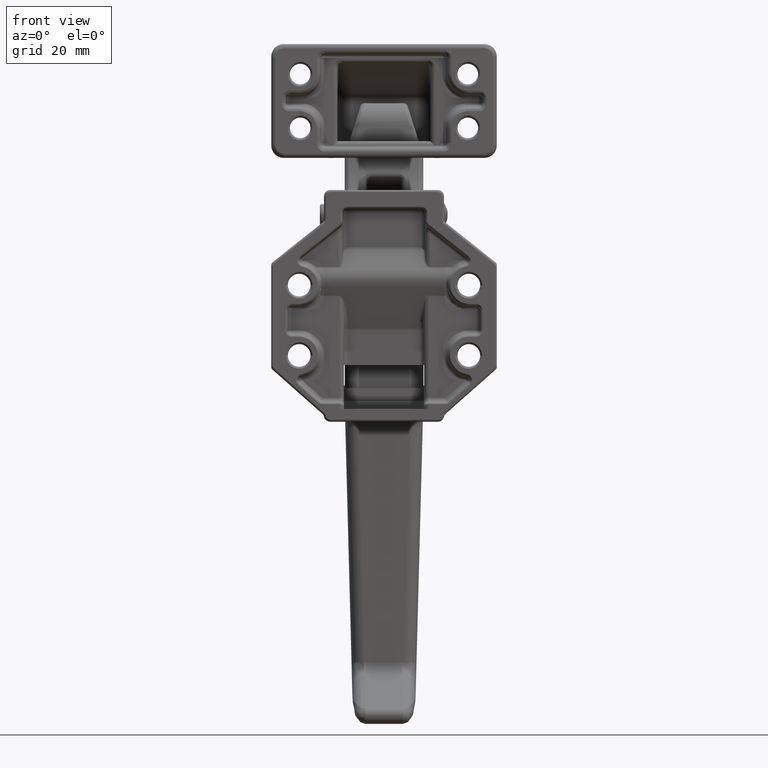
[diagram: clean part render]
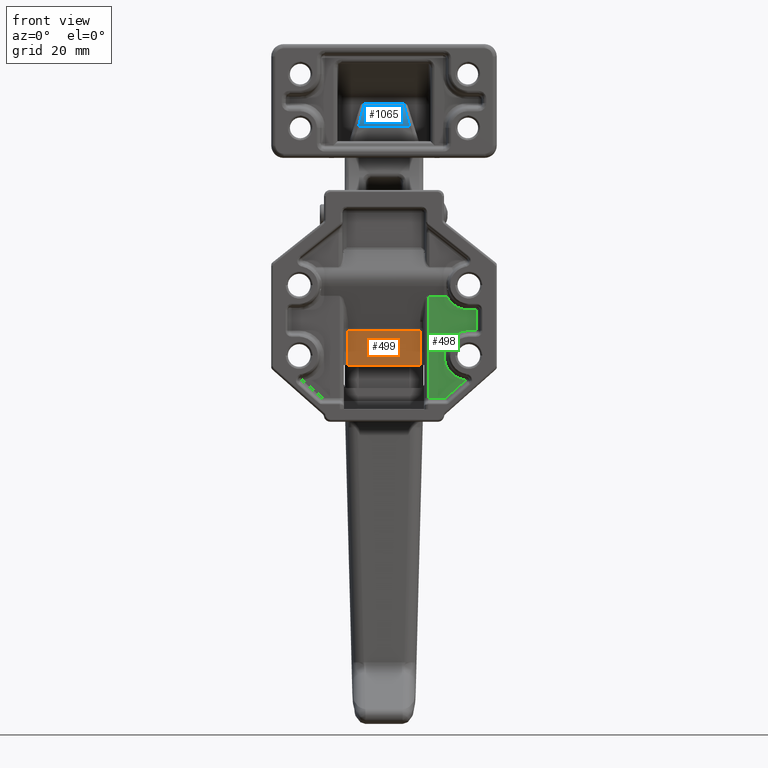
[diagram: same view with three faces highlighted in distinct colors, each labeled with its STEP entity id]
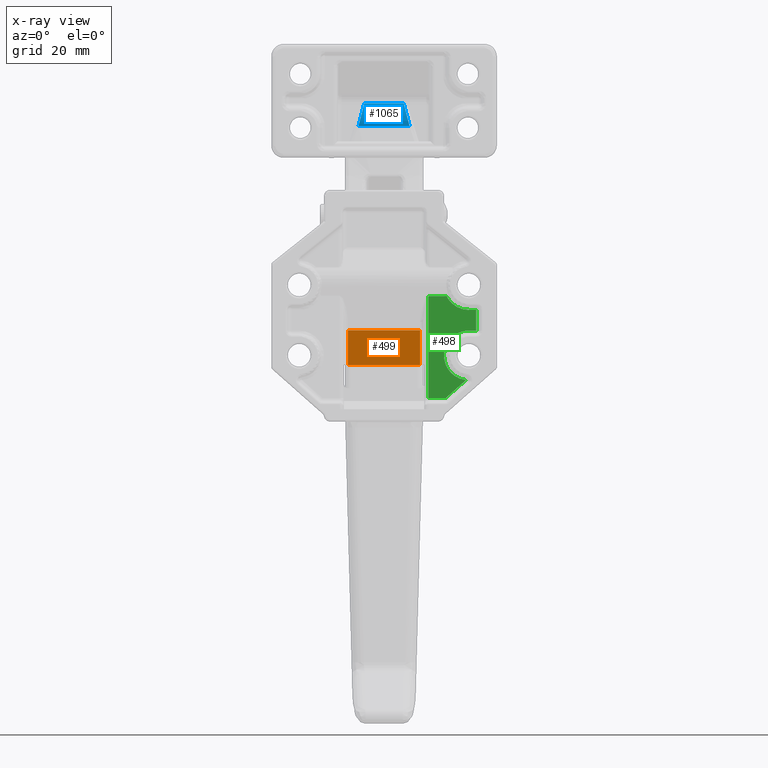
[diagram: x-ray of the same camera — body ghosted, the three highlighted faces saturated]
A machine part, front view with three faces highlighted in distinct colors.
The next image is the same camera in x-ray (body ghosted, the three faces saturated) — at least one of them is partly hidden behind the body in this view.
Their STEP definitions:

[orange] entity #499 — the highlighted planar face has unit normal (0, 1, -0.0015).
#499=ADVANCED_FACE('',(#3446),#3445,.F.);
#3445=PLANE('',#13551);
#3446=FACE_OUTER_BOUND('',#13552,.T.);
#13548=CARTESIAN_POINT('',(-1.04400000000E+001,5.50000000000E+000,-1.41412867862E+001));
#13549=DIRECTION('',(0.00000000000E+000,1.00000000000E+000,0.00000000000E+000));
#13550=DIRECTION('',(0.00000000000E+000,0.00000000000E+000,1.00000000000E+000));
#13551=AXIS2_PLACEMENT_3D('',#13548,#13549,#13550);
#13552=EDGE_LOOP('',(#24957,#24958,#24959,#24960));
#24957=ORIENTED_EDGE('',*,*,#28616,.F.);
#24958=ORIENTED_EDGE('',*,*,#28493,.T.);
#24959=ORIENTED_EDGE('',*,*,#28448,.T.);
#24960=ORIENTED_EDGE('',*,*,#28443,.T.);
#28443=EDGE_CURVE('',#33378,#32465,#33379,.T.);
#28448=EDGE_CURVE('',#33412,#33378,#33413,.T.);
#28493=EDGE_CURVE('',#33694,#33412,#33707,.T.);
#28616=EDGE_CURVE('',#33694,#32465,#34499,.T.);
#32465=VERTEX_POINT('',#45476);
#33378=VERTEX_POINT('',#46165);
#33379=LINE('',#46166,#46167);
#33412=VERTEX_POINT('',#46187);
#33413=LINE('',#46188,#46189);
#33694=VERTEX_POINT('',#46363);
#33707=LINE('',#46371,#46372);
#34499=LINE('',#47200,#47201);
#45476=CARTESIAN_POINT('',(8.70000000000E+000,5.50000000000E+000,-4.88714421593E+000));
#46165=CARTESIAN_POINT('',(8.70000000000E+000,5.50000000000E+000,-1.33000010980E+001));
#46166=CARTESIAN_POINT('',(8.70000000000E+000,5.50000000000E+000,-1.33000010980E+001));
#46167=VECTOR('',#46168,8.41285688207E+000);
#46168=DIRECTION('',(0.00000000000E+000,-2.11147873344E-016,1.00000000000E+000));
#46187=CARTESIAN_POINT('',(-8.70000000000E+000,5.50000000000E+000,-1.33000010980E+001));
#46188=CARTESIAN_POINT('',(-8.70000000000E+000,5.50000000000E+000,-1.33000010980E+001));
#46189=VECTOR('',#46190,1.74000000000E+001);
#46190=DIRECTION('',(1.00000000000E+000,-1.02089473529E-016,-2.04178947058E-016));
#46363=CARTESIAN_POINT('',(-8.70000000000E+000,5.50000000000E+000,-4.88714421593E+000));
#46371=CARTESIAN_POINT('',(-8.70000000000E+000,5.50000000000E+000,-4.88714421593E+000));
#46372=VECTOR('',#46373,8.41285688207E+000);
#46373=DIRECTION('',(0.00000000000E+000,4.22295746689E-016,-1.00000000000E+000));
#47200=CARTESIAN_POINT('',(-8.70000000000E+000,5.50000000000E+000,-4.88714421593E+000));
#47201=VECTOR('',#47202,1.74000000000E+001);
#47202=DIRECTION('',(1.00000000000E+000,0.00000000000E+000,1.02089473529E-016));

[blue] entity #1065 — the highlighted cylindrical surface (edge-blend (fillet) strip) has radius 5.5 mm, axis along (1, 0, 0).
#1065=ADVANCED_FACE('',(#9128),#9127,.T.);
#9127=CYLINDRICAL_SURFACE('',#22713,5.50000000000E+000);
#9128=FACE_OUTER_BOUND('',#22714,.T.);
#22710=CARTESIAN_POINT('',(0.00000000000E+000,-1.11000000000E+001,2.15000000000E+001));
#22711=DIRECTION('',(1.00000000000E+000,7.88510670899E-017,-0.00000000000E+000));
#22712=DIRECTION('',(-7.88510670899E-017,1.00000000000E+000,-0.00000000000E+000));
#22713=AXIS2_PLACEMENT_3D('',#22710,#22711,#22712);
#22714=EDGE_LOOP('',(#27656,#27657,#27658,#27659));
#27656=ORIENTED_EDGE('',*,*,#29872,.T.);
#27657=ORIENTED_EDGE('',*,*,#29873,.T.);
#27658=ORIENTED_EDGE('',*,*,#29874,.T.);
#27659=ORIENTED_EDGE('',*,*,#29826,.F.);
#29826=EDGE_CURVE('',#42435,#42428,#42442,.T.);
#29872=EDGE_CURVE('',#42435,#42744,#42745,.T.);
#29873=EDGE_CURVE('',#42744,#42751,#42752,.T.);
#29874=EDGE_CURVE('',#42751,#42428,#42758,.T.);
#42428=VERTEX_POINT('',#53511);
#42435=VERTEX_POINT('',#53516);
#42442=LINE('',#53521,#53522);
#42744=VERTEX_POINT('',#53759);
#42745=(BOUNDED_CURVE() B_SPLINE_CURVE(3,(#53760,#53761,#53762,#53763,#53764,#53765),.UNSPECIFIED.,.F.,.F.) B_SPLINE_CURVE_WITH_KNOTS((4,1,1,4),(0.00000000000E+000,3.27063505901E-001,6.56236458220E-001,1.00000000000E+000),.UNSPECIFIED.) CURVE() GEOMETRIC_REPRESENTATION_ITEM() RATIONAL_B_SPLINE_CURVE((1.00000000000E+000,1.00000000000E+000,1.00000000000E+000,1.00000000000E+000,1.00000000000E+000,1.00000000000E+000)) REPRESENTATION_ITEM('') );
#42751=VERTEX_POINT('',#53766);
#42752=LINE('',#53767,#53768);
#42758=(BOUNDED_CURVE() B_SPLINE_CURVE(3,(#53770,#53771,#53772,#53773,#53774,#53775),.UNSPECIFIED.,.F.,.F.) B_SPLINE_CURVE_WITH_KNOTS((4,1,1,4),(0.00000000000E+000,3.38642339386E-001,6.78521013168E-001,1.00000000000E+000),.UNSPECIFIED.) CURVE() GEOMETRIC_REPRESENTATION_ITEM() RATIONAL_B_SPLINE_CURVE((1.00000000000E+000,1.00000000000E+000,1.00000000000E+000,1.00000000000E+000,1.00000000000E+000,1.00000000000E+000)) REPRESENTATION_ITEM('') );
#53511=CARTESIAN_POINT('',(4.77737686648E+000,-1.17790476777E+001,2.69579203229E+001));
#53516=CARTESIAN_POINT('',(-4.77737686648E+000,-1.17790476777E+001,2.69579203229E+001));
#53521=CARTESIAN_POINT('',(-4.77737686648E+000,-1.17790476777E+001,2.69579203229E+001));
#53522=VECTOR('',#53523,9.55475373296E+000);
#53523=DIRECTION('',(1.00000000000E+000,7.43653636314E-016,0.00000000000E+000));
#53759=CARTESIAN_POINT('',(-6.17589679930E+000,-1.65999816994E+001,2.15138472505E+001));
#53760=CARTESIAN_POINT('',(-4.77737686648E+000,-1.17790476777E+001,2.69579203229E+001));
#53761=CARTESIAN_POINT('',(-4.80502797232E+000,-1.26492981755E+001,2.68507301502E+001));
#53762=CARTESIAN_POINT('',(-4.97131512958E+000,-1.43400348844E+001,2.62071252969E+001));
#53763=CARTESIAN_POINT('',(-5.49767549470E+000,-1.61632710156E+001,2.41578839475E+001));
#53764=CARTESIAN_POINT('',(-5.95317006547E+000,-1.65980993112E+001,2.24081758104E+001));
#53765=CARTESIAN_POINT('',(-6.17589679930E+000,-1.65999816994E+001,2.15138472505E+001));
#53766=CARTESIAN_POINT('',(6.17589680268E+000,-1.65999816995E+001,2.15138472405E+001));
#53767=CARTESIAN_POINT('',(-6.17589679930E+000,-1.65999816994E+001,2.15138472505E+001));
#53768=VECTOR('',#53769,1.23517936020E+001);
#53769=DIRECTION('',(1.00000000000E+000,-2.23860367596E-012,-8.12878902046E-010));
#53770=CARTESIAN_POINT('',(6.17589680268E+000,-1.65999816995E+001,2.15138472405E+001));
#53771=CARTESIAN_POINT('',(5.95655661142E+000,-1.65978567055E+001,2.23947662936E+001));
#53772=CARTESIAN_POINT('',(5.49768899344E+000,-1.61676761175E+001,2.41578312630E+001));
#53773=CARTESIAN_POINT('',(4.96981317223E+000,-1.43384241859E+001,2.62126072736E+001));
#53774=CARTESIAN_POINT('',(4.80459085049E+000,-1.26342073887E+001,2.68520392755E+001));
#53775=CARTESIAN_POINT('',(4.77737686648E+000,-1.17790476777E+001,2.69579203229E+001));

[green] entity #498 — the highlighted planar face has unit normal (0, -1, 0.0015).
#498=ADVANCED_FACE('',(#3436),#3435,.T.);
#3435=PLANE('',#13546);
#3436=FACE_OUTER_BOUND('',#13547,.T.);
#13543=CARTESIAN_POINT('',(9.54000013000E+000,3.00000000000E+000,5.80082134154E+000));
#13544=DIRECTION('',(0.00000000000E+000,-1.00000000000E+000,0.00000000000E+000));
#13545=DIRECTION('',(0.00000000000E+000,0.00000000000E+000,-1.00000000000E+000));
#13546=AXIS2_PLACEMENT_3D('',#13543,#13544,#13545);
#13547=EDGE_LOOP('',(#24948,#24949,#24950,#24951,#24952,#24953,#24954,#24955,#24956));
#24948=ORIENTED_EDGE('',*,*,#28587,.T.);
#24949=ORIENTED_EDGE('',*,*,#28584,.T.);
#24950=ORIENTED_EDGE('',*,*,#28583,.T.);
#24951=ORIENTED_EDGE('',*,*,#28615,.T.);
#24952=ORIENTED_EDGE('',*,*,#28441,.F.);
#24953=ORIENTED_EDGE('',*,*,#28599,.T.);
#24954=ORIENTED_EDGE('',*,*,#28595,.T.);
#24955=ORIENTED_EDGE('',*,*,#28592,.T.);
#24956=ORIENTED_EDGE('',*,*,#28590,.T.);
#28441=EDGE_CURVE('',#33353,#32484,#33366,.T.);
#28583=EDGE_CURVE('',#34279,#34286,#34293,.T.);
#28584=EDGE_CURVE('',#34299,#34279,#34300,.T.);
#28587=EDGE_CURVE('',#34318,#34299,#34319,.T.);
#28590=EDGE_CURVE('',#34337,#34318,#34338,.T.);
#28592=EDGE_CURVE('',#34350,#34337,#34351,.T.);
#28595=EDGE_CURVE('',#34369,#34350,#34370,.T.);
#28599=EDGE_CURVE('',#33353,#34369,#34394,.T.);
#28615=EDGE_CURVE('',#34286,#32484,#34493,.T.);
#32484=VERTEX_POINT('',#45489);
#33353=VERTEX_POINT('',#46150);
#33366=LINE('',#46159,#46160);
#34279=VERTEX_POINT('',#46940);
#34286=VERTEX_POINT('',#46945);
#34293=(BOUNDED_CURVE() B_SPLINE_CURVE(3,(#46960,#46961,#46962,#46963,#46964,#46965,#46966,#46967,#46968,#46969,#46970,#46971,#46972,#46973,#46974,#46975,#46976,#46977,#46978,#46979,#46980,#46981,#46982),.UNSPECIFIED.,.F.,.F.) B_SPLINE_CURVE_WITH_KNOTS((4,1,1,1,2,2,1,2,2,1,1,1,2,2,4),(0.00000000000E+000,1.25000000000E-001,1.87500000000E-001,2.18750000000E-001,2.34375000000E-001,2.50000000000E-001,3.75000000000E-001,4.37500000000E-001,5.00000000000E-001,6.25000000000E-001,6.87500000000E-001,7.18750000000E-001,7.34375000000E-001,7.50000000000E-001,1.00000000000E+000),.UNSPECIFIED.) CURVE() GEOMETRIC_REPRESENTATION_ITEM() RATIONAL_B_SPLINE_CURVE((1.00000000000E+000,1.00000000000E+000,1.00000000000E+000,1.00000000000E+000,1.00000000000E+000,1.00000000000E+000,1.00000000000E+000,1.00000000000E+000,1.00000000000E+000,1.00000000000E+000,1.00000000000E+000,1.00000000000E+000,1.00000000000E+000,1.00000000000E+000,1.00000000000E+000,1.00000000000E+000,1.00000000000E+000,1.00000000000E+000,1.00000000000E+000,1.00000000000E+000,1.00000000000E+000,1.00000000000E+000,1.00000000000E+000)) REPRESENTATION_ITEM('') );
#34299=VERTEX_POINT('',#46983);
#34300=LINE('',#46984,#46985);
#34318=VERTEX_POINT('',#46995);
#34319=LINE('',#46996,#46997);
#34337=VERTEX_POINT('',#47007);
#34338=LINE('',#47008,#47009);
#34350=VERTEX_POINT('',#47015);
#34351=(BOUNDED_CURVE() B_SPLINE_CURVE(3,(#47016,#47017,#47018,#47019,#47020,#47021,#47022,#47023,#47024,#47025,#47026,#47027,#47028,#47029,#47030,#47031,#47032,#47033,#47034,#47035,#47036,#47037,#47038,#47039,#47040,#47041,#47042,#47043,#47044,#47045,#47046,#47047,#47048,#47049,#47050,#47051,#47052,#47053,#47054,#47055,#47056,#47057,#47058,#47059,#47060,#47061,#47062,#47063,#47064,#47065,#47066,#47067,#47068,#47069,#47070,#47071,#47072,#47073,#47074,#47075,#47076,#47077,#47078,#47079,#47080,#47081,#47082,#47083,#47084),.UNSPECIFIED.,.F.,.F.) B_SPLINE_CURVE_WITH_KNOTS((4,1,1,1,2,2,2,1,1,2,2,1,1,2,2,1,1,1,2,2,1,1,2,2,1,1,2,2,1,2,2,2,1,2,2,1,1,2,2,1,1,1,2,2,4),(0.00000000000E+000,6.25000000000E-002,9.37500000000E-002,1.09375000000E-001,1.17187500000E-001,1.25000000000E-001,1.87500000000E-001,2.18750000000E-001,2.34375000000E-001,2.42187500000E-001,2.50000000000E-001,2.81250000000E-001,2.96875000000E-001,3.04687500000E-001,3.12500000000E-001,3.43750000000E-001,3.59375000000E-001,3.67187500000E-001,3.71093750000E-001,3.75000000000E-001,4.37500000000E-001,4.68750000000E-001,4.84375000000E-001,5.00000000000E-001,5.31250000000E-001,5.46875000000E-001,5.54687500000E-001,5.62500000000E-001,5.93750000000E-001,6.09375000000E-001,6.25000000000E-001,6.87500000000E-001,7.18750000000E-001,7.34375000000E-001,7.50000000000E-001,7.81250000000E-001,7.96875000000E-001,8.04687500000E-001,8.12500000000E-001,8.43750000000E-001,8.59375000000E-001,8.67187500000E-001,8.71093750000E-001,8.75000000000E-001,1.00000000000E+000),.UNSPECIFIED.) CURVE() GEOMETRIC_REPRESENTATION_ITEM() RATIONAL_B_SPLINE_CURVE((1.00000000000E+000,1.00000000000E+000,1.00000000000E+000,1.00000000000E+000,1.00000000000E+000,1.00000000000E+000,1.00000000000E+000,1.00000000000E+000,1.00000000000E+000,1.00000000000E+000,1.00000000000E+000,1.00000000000E+000,1.00000000000E+000,1.00000000000E+000,1.00000000000E+000,1.00000000000E+000,1.00000000000E+000,1.00000000000E+000,1.00000000000E+000,1.00000000000E+000,1.00000000000E+000,1.00000000000E+000,1.00000000000E+000,1.00000000000E+000,1.00000000000E+000,1.00000000000E+000,1.00000000000E+000,1.00000000000E+000,1.00000000000E+000,1.00000000000E+000,1.00000000000E+000,1.00000000000E+000,1.00000000000E+000,1.00000000000E+000,1.00000000000E+000,1.00000000000E+000,1.00000000000E+000,1.00000000000E+000,1.00000000000E+000,1.00000000000E+000,1.00000000000E+000,1.00000000000E+000,1.00000000000E+000,1.00000000000E+000,1.00000000000E+000,1.00000000000E+000,1.00000000000E+000,1.00000000000E+000,1.00000000000E+000,1.00000000000E+000,1.00000000000E+000,1.00000000000E+000,1.00000000000E+000,1.00000000000E+000,1.00000000000E+000,1.00000000000E+000,1.00000000000E+000,1.00000000000E+000,1.00000000000E+000,1.00000000000E+000,1.00000000000E+000,1.00000000000E+000,1.00000000000E+000,1.00000000000E+000,1.00000000000E+000,1.00000000000E+000,1.00000000000E+000,1.00000000000E+000,1.00000000000E+000)) REPRESENTATION_ITEM('') );
#34369=VERTEX_POINT('',#47117);
#34370=LINE('',#47118,#47119);
#34394=LINE('',#47133,#47134);
#34493=LINE('',#47197,#47198);
#45489=CARTESIAN_POINT('',(1.07000000000E+001,3.00000000000E+000,3.33709792165E+000));
#46150=CARTESIAN_POINT('',(1.07000000000E+001,3.00000000000E+000,-2.13000010980E+001));
#46159=CARTESIAN_POINT('',(1.07000000000E+001,3.00000000000E+000,-2.13000010980E+001));
#46160=VECTOR('',#46161,2.46370990197E+001);
#46161=DIRECTION('',(0.00000000000E+000,1.80252232414E-016,1.00000000000E+000));
#46940=CARTESIAN_POINT('',(2.05000000000E+001,3.00000000000E+000,2.60208521397E-014));
#46945=CARTESIAN_POINT('',(1.51233875206E+001,2.99998358855E+000,3.33711021068E+000));
#46960=CARTESIAN_POINT('',(2.05000000000E+001,3.00000000000E+000,2.60208521397E-014));
#46961=CARTESIAN_POINT('',(2.02252910718E+001,3.00000000000E+000,4.96719145113E-004));
#46962=CARTESIAN_POINT('',(1.98177008715E+001,3.00000000000E+000,2.84623432496E-002));
#46963=CARTESIAN_POINT('',(1.93500070575E+001,3.00000000000E+000,1.08724859132E-001));
#46964=CARTESIAN_POINT('',(1.91181171720E+001,3.00000000000E+000,1.60765105680E-001));
#46965=CARTESIAN_POINT('',(1.90191551542E+001,3.00000000000E+000,1.85619994616E-001));
#46966=CARTESIAN_POINT('',(1.89532736673E+001,3.00000000000E+000,2.02757015269E-001));
#46967=CARTESIAN_POINT('',(1.89216689618E+001,3.00000000000E+000,2.11250451535E-001));
#46968=CARTESIAN_POINT('',(1.86144360134E+001,3.00000000000E+000,2.96698489411E-001));
#46969=CARTESIAN_POINT('',(1.82158471776E+001,3.00000000000E+000,4.38722207616E-001));
#46970=CARTESIAN_POINT('',(1.78338409850E+001,3.00000000000E+000,6.22885427374E-001));
#46971=CARTESIAN_POINT('',(1.75828552217E+001,3.00000000000E+000,7.55025240892E-001));
#46972=CARTESIAN_POINT('',(1.74580439500E+001,3.00000000000E+000,8.26496250596E-001));
#46973=CARTESIAN_POINT('',(1.70961031185E+001,3.00000000000E+000,1.05064216359E+000));
#46974=CARTESIAN_POINT('',(1.67527525417E+001,3.00000000000E+000,1.29860807624E+000));
#46975=CARTESIAN_POINT('',(1.63847098145E+001,3.00000000000E+000,1.62958664038E+000));
#46976=CARTESIAN_POINT('',(1.62088216873E+001,3.00000000000E+000,1.80549717230E+000));
#46977=CARTESIAN_POINT('',(1.61351838978E+001,3.00000000000E+000,1.88312052523E+000));
#46978=CARTESIAN_POINT('',(1.60864793351E+001,3.00000000000E+000,1.93536567718E+000));
#46979=CARTESIAN_POINT('',(1.60611349971E+001,3.00000000000E+000,1.96305338624E+000));
#46980=CARTESIAN_POINT('',(1.56738872495E+001,3.00000000000E+000,2.39318429012E+000));
#46981=CARTESIAN_POINT('',(1.53688977829E+001,3.00000000000E+000,2.84276925756E+000));
#46982=CARTESIAN_POINT('',(1.51233875206E+001,2.99998358855E+000,3.33711021068E+000));
#46983=CARTESIAN_POINT('',(2.22999987000E+001,3.00000000000E+000,7.20049020408E-011));
#46984=CARTESIAN_POINT('',(2.22999987000E+001,3.00000000000E+000,7.20049020408E-011));
#46985=VECTOR('',#46986,1.79999870000E+000);
#46986=DIRECTION('',(-1.00000000000E+000,-4.93432811757E-016,-3.99882962075E-011));
#46995=CARTESIAN_POINT('',(2.22999987000E+001,3.00000000000E+000,-5.00000000000E+000));
#46996=CARTESIAN_POINT('',(2.22999987000E+001,3.00000000000E+000,-5.00000000000E+000));
#46997=VECTOR('',#46998,5.00000000007E+000);
#46998=DIRECTION('',(-7.10542735750E-016,-5.32907051812E-016,1.00000000000E+000));
#47007=CARTESIAN_POINT('',(2.05000000000E+001,3.00000000000E+000,-5.00000000000E+000));
#47008=CARTESIAN_POINT('',(2.05000000000E+001,3.00000000000E+000,-5.00000000000E+000));
#47009=VECTOR('',#47010,1.79999870000E+000);
#47010=DIRECTION('',(1.00000000000E+000,1.97373124703E-015,9.86865623514E-016));
#47015=CARTESIAN_POINT('',(1.98018044379E+001,2.99999999996E+000,-1.69592526350E+001));
#47016=CARTESIAN_POINT('',(1.98018044379E+001,2.99999999996E+000,-1.69592526350E+001));
#47017=CARTESIAN_POINT('',(1.94262600327E+001,3.00000000000E+000,-1.69147370451E+001));
#47018=CARTESIAN_POINT('',(1.88791654018E+001,3.00000000000E+000,-1.67983417309E+001));
#47019=CARTESIAN_POINT('',(1.82692767727E+001,3.00000000000E+000,-1.65757085149E+001));
#47020=CARTESIAN_POINT('',(1.79714295683E+001,3.00000000000E+000,-1.64426822362E+001));
#47021=CARTESIAN_POINT('',(1.78453015756E+001,3.00000000000E+000,-1.63810189017E+001));
#47022=CARTESIAN_POINT('',(1.77615542048E+001,3.00000000000E+000,-1.63388762181E+001));
#47023=CARTESIAN_POINT('',(1.77215157587E+001,3.00000000000E+000,-1.63181747560E+001));
#47024=CARTESIAN_POINT('',(1.73326978649E+001,3.00000000000E+000,-1.61112475457E+001));
#47025=CARTESIAN_POINT('',(1.70057699640E+001,3.00000000000E+000,-1.58933080183E+001));
#47026=CARTESIAN_POINT('',(1.65469819717E+001,3.00000000000E+000,-1.55183118812E+001));
#47027=CARTESIAN_POINT('',(1.63273150294E+001,3.00000000000E+000,-1.53196889185E+001));
#47028=CARTESIAN_POINT('',(1.60880592742E+001,3.00000000000E+000,-1.50684935639E+001));
#47029=CARTESIAN_POINT('',(1.59891687386E+001,3.00000000000E+000,-1.49566665767E+001));
#47030=CARTESIAN_POINT('',(1.59240523027E+001,3.00000000000E+000,-1.48811881773E+001));
#47031=CARTESIAN_POINT('',(1.58911633299E+001,3.00000000000E+000,-1.48420889872E+001));
#47032=CARTESIAN_POINT('',(1.57361054230E+001,3.00000000000E+000,-1.46532398820E+001));
#47033=CARTESIAN_POINT('',(1.55614676652E+001,3.00000000000E+000,-1.44176913720E+001));
#47034=CARTESIAN_POINT('',(1.53777291426E+001,3.00000000000E+000,-1.41272580055E+001));
#47035=CARTESIAN_POINT('',(1.53032709605E+001,3.00000000000E+000,-1.39994379688E+001));
#47036=CARTESIAN_POINT('',(1.52545848165E+001,3.00000000000E+000,-1.39134804790E+001));
#47037=CARTESIAN_POINT('',(1.52297128516E+001,3.00000000000E+000,-1.38682506562E+001));
#47038=CARTESIAN_POINT('',(1.51177867881E+001,3.00000000000E+000,-1.36590313317E+001));
#47039=CARTESIAN_POINT('',(1.49956362795E+001,3.00000000000E+000,-1.34016193057E+001));
#47040=CARTESIAN_POINT('',(1.48744086962E+001,3.00000000000E+000,-1.30901948113E+001));
#47041=CARTESIAN_POINT('',(1.48191152404E+001,3.00000000000E+000,-1.29317049481E+001));
#47042=CARTESIAN_POINT('',(1.47965581170E+001,3.00000000000E+000,-1.28631855176E+001));
#47043=CARTESIAN_POINT('',(1.47817733841E+001,3.00000000000E+000,-1.28173736299E+001));
#47044=CARTESIAN_POINT('',(1.47740338817E+001,3.00000000000E+000,-1.27928725256E+001));
#47045=CARTESIAN_POINT('',(1.46607253700E+001,3.00000000000E+000,-1.24272163871E+001));
#47046=CARTESIAN_POINT('',(1.45485911100E+001,3.00000000000E+000,-1.19039680796E+001));
#47047=CARTESIAN_POINT('',(1.45014715281E+001,3.00000000000E+000,-1.12812129367E+001));
#47048=CARTESIAN_POINT('',(1.44992139332E+001,3.00000000000E+000,-1.10116824216E+001));
#47049=CARTESIAN_POINT('',(1.45016947615E+001,3.00000000000E+000,-1.08314097552E+001));
#47050=CARTESIAN_POINT('',(1.45050446344E+001,3.00000000000E+000,-1.07389580762E+001));
#47051=CARTESIAN_POINT('',(1.45203740122E+001,3.00000000000E+000,-1.04728596602E+001));
#47052=CARTESIAN_POINT('',(1.45477453639E+001,3.00000000000E+000,-1.02073640700E+001));
#47053=CARTESIAN_POINT('',(1.46007520621E+001,3.00000000000E+000,-9.89867415980E+000));
#47054=CARTESIAN_POINT('',(1.46279849587E+001,3.00000000000E+000,-9.76660454366E+000));
#47055=CARTESIAN_POINT('',(1.46471437210E+001,3.00000000000E+000,-9.67860836837E+000));
#47056=CARTESIAN_POINT('',(1.46568554727E+001,3.00000000000E+000,-9.63616932712E+000));
#47057=CARTESIAN_POINT('',(1.47116167588E+001,3.00000000000E+000,-9.40876042301E+000));
#47058=CARTESIAN_POINT('',(1.47903041437E+001,3.00000000000E+000,-9.13903387915E+000));
#47059=CARTESIAN_POINT('',(1.48884522908E+001,3.00000000000E+000,-8.87405354691E+000));
#47060=CARTESIAN_POINT('',(1.49582090026E+001,3.00000000000E+000,-8.69845470576E+000));
#47061=CARTESIAN_POINT('',(1.49945528607E+001,3.00000000000E+000,-8.61272446740E+000));
#47062=CARTESIAN_POINT('',(1.51940517338E+001,3.00000000000E+000,-8.17129180620E+000));
#47063=CARTESIAN_POINT('',(1.53886443647E+001,3.00000000000E+000,-7.83368131403E+000));
#47064=CARTESIAN_POINT('',(1.57316512936E+001,3.00000000000E+000,-7.35249418384E+000));
#47065=CARTESIAN_POINT('',(1.59151541861E+001,3.00000000000E+000,-7.12057931069E+000));
#47066=CARTESIAN_POINT('',(1.61166562206E+001,3.00000000000E+000,-6.90168247543E+000));
#47067=CARTESIAN_POINT('',(1.62549907196E+001,3.00000000000E+000,-6.75864414924E+000));
#47068=CARTESIAN_POINT('',(1.63276894508E+001,3.00000000000E+000,-6.68713490837E+000));
#47069=CARTESIAN_POINT('',(1.65425958962E+001,3.00000000000E+000,-6.48556569030E+000));
#47070=CARTESIAN_POINT('',(1.67675274437E+001,3.00000000000E+000,-6.29479641669E+000));
#47071=CARTESIAN_POINT('',(1.70474915113E+001,3.00000000000E+000,-6.09113216695E+000));
#47072=CARTESIAN_POINT('',(1.71712355251E+001,3.00000000000E+000,-6.00789746767E+000));
#47073=CARTESIAN_POINT('',(1.72545669594E+001,3.00000000000E+000,-5.95330766352E+000));
#47074=CARTESIAN_POINT('',(1.72983513683E+001,3.00000000000E+000,-5.92540638314E+000));
#47075=CARTESIAN_POINT('',(1.75023521842E+001,3.00000000000E+000,-5.79871372958E+000));
#47076=CARTESIAN_POINT('',(1.77546154441E+001,3.00000000000E+000,-5.65865688431E+000));
#47077=CARTESIAN_POINT('',(1.80619815723E+001,3.00000000000E+000,-5.51621232475E+000));
#47078=CARTESIAN_POINT('',(1.82189293844E+001,3.00000000000E+000,-5.45022881827E+000));
#47079=CARTESIAN_POINT('',(1.82868923212E+001,3.00000000000E+000,-5.42307276693E+000));
#47080=CARTESIAN_POINT('',(1.83323564099E+001,3.00000000000E+000,-5.40521819809E+000));
#47081=CARTESIAN_POINT('',(1.83568413190E+001,3.00000000000E+000,-5.39578051838E+000));
#47082=CARTESIAN_POINT('',(1.90568497269E+001,3.00000000000E+000,-5.13037171415E+000));
#47083=CARTESIAN_POINT('',(1.97641651619E+001,3.00000000000E+000,-5.00112577170E+000));
#47084=CARTESIAN_POINT('',(2.05000000000E+001,3.00000000000E+000,-5.00000000000E+000));
#47117=CARTESIAN_POINT('',(1.48967588604E+001,3.00000000000E+000,-2.13000010980E+001));
#47118=CARTESIAN_POINT('',(1.48967588604E+001,3.00000000000E+000,-2.13000010980E+001));
#47119=VECTOR('',#47120,6.54992895660E+000);
#47120=DIRECTION('',(7.48870042714E-001,-6.48689161717E-012,6.62716877049E-001));
#47133=CARTESIAN_POINT('',(1.07000000000E+001,3.00000000000E+000,-2.13000010980E+001));
#47134=VECTOR('',#47135,4.19675886040E+000);
#47135=DIRECTION('',(1.00000000000E+000,1.26980622320E-015,8.46537482133E-016));
#47197=CARTESIAN_POINT('',(1.51233875206E+001,2.99998358855E+000,3.33711021068E+000));
#47198=VECTOR('',#47199,4.42338752062E+000);
#47199=DIRECTION('',(-9.99999999989E-001,3.71015526504E-006,-2.77819295134E-006));